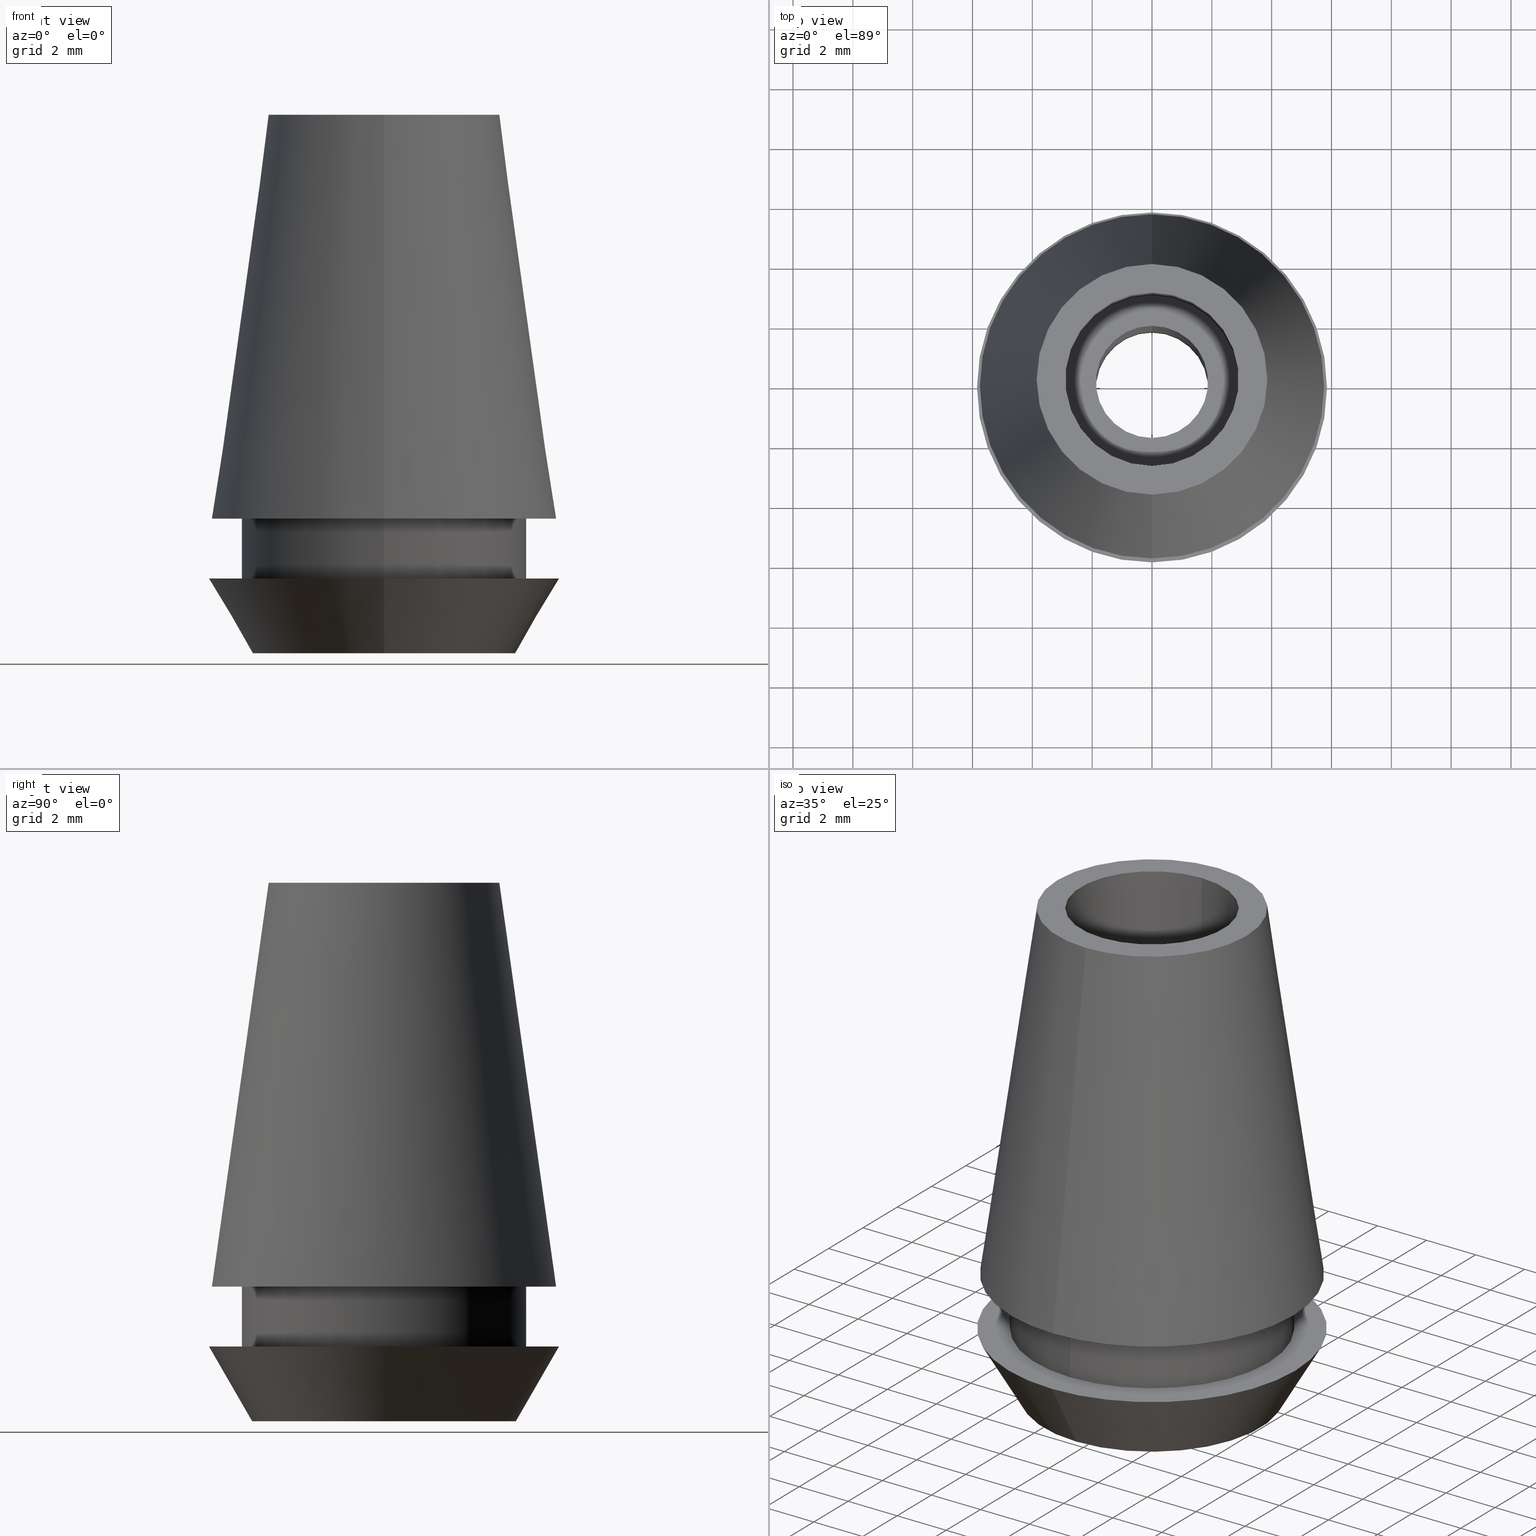
[diagram: canonical four-view strip — front | top / right | iso, engineering-drawing reading convention]
A machine part, canonical four-view strip (front | top / right | iso — engineering-drawing reading convention). The complete STEP part file that produces these views, byte-faithful:
ISO-10303-21;
HEADER;
FILE_DESCRIPTION((''),'2;1');
FILE_NAME('ERC11-3_75','2018-05-14T',('ykawabe'),(''),
'CREO PARAMETRIC BY PTC INC, 2016380','CREO PARAMETRIC BY PTC INC, 2016380','');
FILE_SCHEMA(('AUTOMOTIVE_DESIGN { 1 0 10303 214 1 1 1 1 }'));
ENDSEC;
DATA;
#17=DIRECTION('',(0.E0,0.E0,1.E0));
#18=VECTOR('',#17,4.85E0);
#19=CARTESIAN_POINT('',(0.E0,2.9E0,-4.85E0));
#20=LINE('',#19,#18);
#21=DRAUGHTING_PRE_DEFINED_CURVE_FONT('continuous');
#22=CURVE_STYLE('',#21,POSITIVE_LENGTH_MEASURE(2.E-2),#4);
#23=PRESENTATION_STYLE_ASSIGNMENT((#22));
#24=STYLED_ITEM('',(#23),#20);
#25=DIRECTION('',(0.E0,0.E0,1.E0));
#26=VECTOR('',#25,4.85E0);
#27=CARTESIAN_POINT('',(0.E0,-2.9E0,-4.85E0));
#28=LINE('',#27,#26);
#29=CURVE_STYLE('',#21,POSITIVE_LENGTH_MEASURE(2.E-2),#4);
#30=PRESENTATION_STYLE_ASSIGNMENT((#29));
#31=STYLED_ITEM('',(#30),#28);
#32=CARTESIAN_POINT('',(0.E0,1.378952295840E-14,-4.85E0));
#33=DIRECTION('',(0.E0,0.E0,-1.E0));
#34=DIRECTION('',(0.E0,-1.E0,0.E0));
#35=AXIS2_PLACEMENT_3D('',#32,#33,#34);
#37=CURVE_STYLE('',#21,POSITIVE_LENGTH_MEASURE(2.E-2),#4);
#38=PRESENTATION_STYLE_ASSIGNMENT((#37));
#39=STYLED_ITEM('',(#38),#36);
#40=CARTESIAN_POINT('',(0.E0,1.378952295840E-14,-4.85E0));
#41=DIRECTION('',(0.E0,0.E0,-1.E0));
#42=DIRECTION('',(0.E0,1.E0,0.E0));
#43=AXIS2_PLACEMENT_3D('',#40,#41,#42);
#45=CURVE_STYLE('',#21,POSITIVE_LENGTH_MEASURE(2.E-2),#4);
#46=PRESENTATION_STYLE_ASSIGNMENT((#45));
#47=STYLED_ITEM('',(#46),#44);
#48=CARTESIAN_POINT('',(0.E0,1.378952295840E-14,-4.85E0));
#49=DIRECTION('',(0.E0,0.E0,1.E0));
#50=DIRECTION('',(0.E0,-1.E0,0.E0));
#51=AXIS2_PLACEMENT_3D('',#48,#49,#50);
#53=CURVE_STYLE('',#21,POSITIVE_LENGTH_MEASURE(2.E-2),#4);
#54=PRESENTATION_STYLE_ASSIGNMENT((#53));
#55=STYLED_ITEM('',(#54),#52);
#56=CARTESIAN_POINT('',(0.E0,1.378952295840E-14,-4.85E0));
#57=DIRECTION('',(0.E0,0.E0,1.E0));
#58=DIRECTION('',(0.E0,1.E0,0.E0));
#59=AXIS2_PLACEMENT_3D('',#56,#57,#58);
#61=CURVE_STYLE('',#21,POSITIVE_LENGTH_MEASURE(2.E-2),#4);
#62=PRESENTATION_STYLE_ASSIGNMENT((#61));
#63=STYLED_ITEM('',(#62),#60);
#64=DIRECTION('',(0.E0,0.E0,1.E0));
#65=VECTOR('',#64,1.315E1);
#66=CARTESIAN_POINT('',(0.E0,1.875E0,-1.8E1));
#67=LINE('',#66,#65);
#68=CURVE_STYLE('',#21,POSITIVE_LENGTH_MEASURE(2.E-2),#4);
#69=PRESENTATION_STYLE_ASSIGNMENT((#68));
#70=STYLED_ITEM('',(#69),#67);
#71=DIRECTION('',(0.E0,0.E0,1.E0));
#72=VECTOR('',#71,1.315E1);
#73=CARTESIAN_POINT('',(0.E0,-1.875E0,-1.8E1));
#74=LINE('',#73,#72);
#75=CURVE_STYLE('',#21,POSITIVE_LENGTH_MEASURE(2.E-2),#4);
#76=PRESENTATION_STYLE_ASSIGNMENT((#75));
#77=STYLED_ITEM('',(#76),#74);
#78=CARTESIAN_POINT('',(0.E0,1.162802135790E-14,-1.8E1));
#79=DIRECTION('',(0.E0,0.E0,1.E0));
#80=DIRECTION('',(0.E0,-1.E0,0.E0));
#81=AXIS2_PLACEMENT_3D('',#78,#79,#80);
#83=CURVE_STYLE('',#21,POSITIVE_LENGTH_MEASURE(2.E-2),#4);
#84=PRESENTATION_STYLE_ASSIGNMENT((#83));
#85=STYLED_ITEM('',(#84),#82);
#86=CARTESIAN_POINT('',(0.E0,1.162802135790E-14,-1.8E1));
#87=DIRECTION('',(0.E0,0.E0,1.E0));
#88=DIRECTION('',(0.E0,1.E0,0.E0));
#89=AXIS2_PLACEMENT_3D('',#86,#87,#88);
#91=CURVE_STYLE('',#21,POSITIVE_LENGTH_MEASURE(2.E-2),#4);
#92=PRESENTATION_STYLE_ASSIGNMENT((#91));
#93=STYLED_ITEM('',(#92),#90);
#94=CARTESIAN_POINT('',(0.E0,1.378952295840E-14,-1.8E1));
#95=DIRECTION('',(0.E0,0.E0,-1.E0));
#96=DIRECTION('',(0.E0,-1.E0,0.E0));
#97=AXIS2_PLACEMENT_3D('',#94,#95,#96);
#99=CURVE_STYLE('',#21,POSITIVE_LENGTH_MEASURE(2.E-2),#4);
#100=PRESENTATION_STYLE_ASSIGNMENT((#99));
#101=STYLED_ITEM('',(#100),#98);
#102=CARTESIAN_POINT('',(0.E0,1.378952295840E-14,-1.8E1));
#103=DIRECTION('',(0.E0,0.E0,-1.E0));
#104=DIRECTION('',(0.E0,1.E0,0.E0));
#105=AXIS2_PLACEMENT_3D('',#102,#103,#104);
#107=CURVE_STYLE('',#21,POSITIVE_LENGTH_MEASURE(2.E-2),#4);
#108=PRESENTATION_STYLE_ASSIGNMENT((#107));
#109=STYLED_ITEM('',(#108),#106);
#110=DIRECTION('',(0.E0,-5.E-1,-8.660254037844E-1));
#111=VECTOR('',#110,2.886751345948E0);
#112=CARTESIAN_POINT('',(0.E0,5.85E0,-1.55E1));
#113=LINE('',#112,#111);
#114=CURVE_STYLE('',#21,POSITIVE_LENGTH_MEASURE(2.E-2),#4);
#115=PRESENTATION_STYLE_ASSIGNMENT((#114));
#116=STYLED_ITEM('',(#115),#113);
#117=DIRECTION('',(0.E0,5.E-1,-8.660254037844E-1));
#118=VECTOR('',#117,2.886751345948E0);
#119=CARTESIAN_POINT('',(0.E0,-5.85E0,-1.55E1));
#120=LINE('',#119,#118);
#121=CURVE_STYLE('',#21,POSITIVE_LENGTH_MEASURE(2.E-2),#4);
#122=PRESENTATION_STYLE_ASSIGNMENT((#121));
#123=STYLED_ITEM('',(#122),#120);
#124=CARTESIAN_POINT('',(0.E0,1.162802135790E-14,-1.55E1));
#125=DIRECTION('',(0.E0,0.E0,-1.E0));
#126=DIRECTION('',(0.E0,-1.E0,0.E0));
#127=AXIS2_PLACEMENT_3D('',#124,#125,#126);
#129=CURVE_STYLE('',#21,POSITIVE_LENGTH_MEASURE(2.E-2),#4);
#130=PRESENTATION_STYLE_ASSIGNMENT((#129));
#131=STYLED_ITEM('',(#130),#128);
#132=CARTESIAN_POINT('',(0.E0,1.162802135790E-14,-1.55E1));
#133=DIRECTION('',(0.E0,0.E0,-1.E0));
#134=DIRECTION('',(0.E0,1.E0,0.E0));
#135=AXIS2_PLACEMENT_3D('',#132,#133,#134);
#137=CURVE_STYLE('',#21,POSITIVE_LENGTH_MEASURE(2.E-2),#4);
#138=PRESENTATION_STYLE_ASSIGNMENT((#137));
#139=STYLED_ITEM('',(#138),#136);
#140=CARTESIAN_POINT('',(0.E0,1.378952295840E-14,-1.55E1));
#141=DIRECTION('',(0.E0,0.E0,1.E0));
#142=DIRECTION('',(0.E0,-1.E0,0.E0));
#143=AXIS2_PLACEMENT_3D('',#140,#141,#142);
#145=CURVE_STYLE('',#21,POSITIVE_LENGTH_MEASURE(2.E-2),#4);
#146=PRESENTATION_STYLE_ASSIGNMENT((#145));
#147=STYLED_ITEM('',(#146),#144);
#148=CARTESIAN_POINT('',(0.E0,1.378952295840E-14,-1.55E1));
#149=DIRECTION('',(0.E0,0.E0,1.E0));
#150=DIRECTION('',(0.E0,1.E0,0.E0));
#151=AXIS2_PLACEMENT_3D('',#148,#149,#150);
#153=CURVE_STYLE('',#21,POSITIVE_LENGTH_MEASURE(2.E-2),#4);
#154=PRESENTATION_STYLE_ASSIGNMENT((#153));
#155=STYLED_ITEM('',(#154),#152);
#156=DIRECTION('',(0.E0,0.E0,-1.E0));
#157=VECTOR('',#156,2.E0);
#158=CARTESIAN_POINT('',(0.E0,4.75E0,-1.35E1));
#159=LINE('',#158,#157);
#160=CURVE_STYLE('',#21,POSITIVE_LENGTH_MEASURE(2.E-2),#4);
#161=PRESENTATION_STYLE_ASSIGNMENT((#160));
#162=STYLED_ITEM('',(#161),#159);
#163=DIRECTION('',(0.E0,0.E0,-1.E0));
#164=VECTOR('',#163,2.E0);
#165=CARTESIAN_POINT('',(0.E0,-4.75E0,-1.35E1));
#166=LINE('',#165,#164);
#167=CURVE_STYLE('',#21,POSITIVE_LENGTH_MEASURE(2.E-2),#4);
#168=PRESENTATION_STYLE_ASSIGNMENT((#167));
#169=STYLED_ITEM('',(#168),#166);
#170=CARTESIAN_POINT('',(0.E0,1.285266815705E-14,-1.35E1));
#171=DIRECTION('',(0.E0,0.E0,1.E0));
#172=DIRECTION('',(0.E0,-1.E0,0.E0));
#173=AXIS2_PLACEMENT_3D('',#170,#171,#172);
#175=CURVE_STYLE('',#21,POSITIVE_LENGTH_MEASURE(2.E-2),#4);
#176=PRESENTATION_STYLE_ASSIGNMENT((#175));
#177=STYLED_ITEM('',(#176),#174);
#178=CARTESIAN_POINT('',(0.E0,1.285266815705E-14,-1.35E1));
#179=DIRECTION('',(0.E0,0.E0,1.E0));
#180=DIRECTION('',(0.E0,1.E0,0.E0));
#181=AXIS2_PLACEMENT_3D('',#178,#179,#180);
#183=CURVE_STYLE('',#21,POSITIVE_LENGTH_MEASURE(2.E-2),#4);
#184=PRESENTATION_STYLE_ASSIGNMENT((#183));
#185=STYLED_ITEM('',(#184),#182);
#186=CARTESIAN_POINT('',(0.E0,1.378952295840E-14,-1.35E1));
#187=DIRECTION('',(0.E0,0.E0,-1.E0));
#188=DIRECTION('',(0.E0,-1.E0,0.E0));
#189=AXIS2_PLACEMENT_3D('',#186,#187,#188);
#191=CURVE_STYLE('',#21,POSITIVE_LENGTH_MEASURE(2.E-2),#4);
#192=PRESENTATION_STYLE_ASSIGNMENT((#191));
#193=STYLED_ITEM('',(#192),#190);
#194=CARTESIAN_POINT('',(0.E0,1.378952295840E-14,-1.35E1));
#195=DIRECTION('',(0.E0,0.E0,-1.E0));
#196=DIRECTION('',(0.E0,1.E0,0.E0));
#197=AXIS2_PLACEMENT_3D('',#194,#195,#196);
#199=CURVE_STYLE('',#21,POSITIVE_LENGTH_MEASURE(2.E-2),#4);
#200=PRESENTATION_STYLE_ASSIGNMENT((#199));
#201=STYLED_ITEM('',(#200),#198);
#202=DIRECTION('',(0.E0,1.391731009601E-1,-9.902680687416E-1));
#203=VECTOR('',#202,1.363267222900E1);
#204=CARTESIAN_POINT('',(0.E0,3.855672233982E0,0.E0));
#205=LINE('',#204,#203);
#206=CURVE_STYLE('',#21,POSITIVE_LENGTH_MEASURE(2.E-2),#4);
#207=PRESENTATION_STYLE_ASSIGNMENT((#206));
#208=STYLED_ITEM('',(#207),#205);
#209=DIRECTION('',(0.E0,-1.391731009601E-1,-9.902680687416E-1));
#210=VECTOR('',#209,1.363267222900E1);
#211=CARTESIAN_POINT('',(0.E0,-3.855672233982E0,0.E0));
#212=LINE('',#211,#210);
#213=CURVE_STYLE('',#21,POSITIVE_LENGTH_MEASURE(2.E-2),#4);
#214=PRESENTATION_STYLE_ASSIGNMENT((#213));
#215=STYLED_ITEM('',(#214),#212);
#216=CARTESIAN_POINT('',(0.E0,1.285266815705E-14,2.486899575160E-14));
#217=DIRECTION('',(0.E0,0.E0,-1.E0));
#218=DIRECTION('',(0.E0,-1.E0,0.E0));
#219=AXIS2_PLACEMENT_3D('',#216,#217,#218);
#221=CURVE_STYLE('',#21,POSITIVE_LENGTH_MEASURE(2.E-2),#4);
#222=PRESENTATION_STYLE_ASSIGNMENT((#221));
#223=STYLED_ITEM('',(#222),#220);
#224=CARTESIAN_POINT('',(0.E0,1.285266815705E-14,2.486899575160E-14));
#225=DIRECTION('',(0.E0,0.E0,-1.E0));
#226=DIRECTION('',(0.E0,1.E0,0.E0));
#227=AXIS2_PLACEMENT_3D('',#224,#225,#226);
#229=CURVE_STYLE('',#21,POSITIVE_LENGTH_MEASURE(2.E-2),#4);
#230=PRESENTATION_STYLE_ASSIGNMENT((#229));
#231=STYLED_ITEM('',(#230),#228);
#232=CARTESIAN_POINT('',(0.E0,1.378952295840E-14,0.E0));
#233=DIRECTION('',(0.E0,0.E0,1.E0));
#234=DIRECTION('',(0.E0,-1.E0,0.E0));
#235=AXIS2_PLACEMENT_3D('',#232,#233,#234);
#237=CURVE_STYLE('',#21,POSITIVE_LENGTH_MEASURE(2.E-2),#4);
#238=PRESENTATION_STYLE_ASSIGNMENT((#237));
#239=STYLED_ITEM('',(#238),#236);
#240=CARTESIAN_POINT('',(0.E0,1.378952295840E-14,0.E0));
#241=DIRECTION('',(0.E0,0.E0,1.E0));
#242=DIRECTION('',(0.E0,1.E0,0.E0));
#243=AXIS2_PLACEMENT_3D('',#240,#241,#242);
#245=CURVE_STYLE('',#21,POSITIVE_LENGTH_MEASURE(2.E-2),#4);
#246=PRESENTATION_STYLE_ASSIGNMENT((#245));
#247=STYLED_ITEM('',(#246),#244);
#248=CARTESIAN_POINT('',(0.E0,2.9E0,-4.85E0));
#249=CARTESIAN_POINT('',(0.E0,2.9E0,0.E0));
#250=VERTEX_POINT('',#248);
#251=VERTEX_POINT('',#249);
#252=CARTESIAN_POINT('',(0.E0,-2.9E0,0.E0));
#253=VERTEX_POINT('',#252);
#254=CARTESIAN_POINT('',(0.E0,-2.9E0,-4.85E0));
#255=VERTEX_POINT('',#254);
#256=CARTESIAN_POINT('',(0.E0,-1.875E0,-4.85E0));
#257=CARTESIAN_POINT('',(0.E0,1.875E0,-4.85E0));
#258=VERTEX_POINT('',#256);
#259=VERTEX_POINT('',#257);
#260=CARTESIAN_POINT('',(0.E0,1.875E0,-1.8E1));
#261=VERTEX_POINT('',#260);
#262=CARTESIAN_POINT('',(0.E0,-1.875E0,-1.8E1));
#263=VERTEX_POINT('',#262);
#264=CARTESIAN_POINT('',(0.E0,-4.406624327026E0,-1.8E1));
#265=CARTESIAN_POINT('',(0.E0,4.406624327026E0,-1.8E1));
#266=VERTEX_POINT('',#264);
#267=VERTEX_POINT('',#265);
#268=CARTESIAN_POINT('',(0.E0,5.85E0,-1.55E1));
#269=VERTEX_POINT('',#268);
#270=CARTESIAN_POINT('',(0.E0,-5.85E0,-1.55E1));
#271=VERTEX_POINT('',#270);
#272=CARTESIAN_POINT('',(0.E0,-4.75E0,-1.55E1));
#273=CARTESIAN_POINT('',(0.E0,4.75E0,-1.55E1));
#274=VERTEX_POINT('',#272);
#275=VERTEX_POINT('',#273);
#276=CARTESIAN_POINT('',(0.E0,4.75E0,-1.35E1));
#277=VERTEX_POINT('',#276);
#278=CARTESIAN_POINT('',(0.E0,-4.75E0,-1.35E1));
#279=VERTEX_POINT('',#278);
#280=CARTESIAN_POINT('',(0.E0,-5.752973502464E0,-1.35E1));
#281=CARTESIAN_POINT('',(0.E0,5.752973502464E0,-1.35E1));
#282=VERTEX_POINT('',#280);
#283=VERTEX_POINT('',#281);
#284=CARTESIAN_POINT('',(0.E0,3.855672233982E0,0.E0));
#285=VERTEX_POINT('',#284);
#286=CARTESIAN_POINT('',(0.E0,-3.855672233982E0,0.E0));
#287=VERTEX_POINT('',#286);
#288=CARTESIAN_POINT('',(0.E0,1.378952295840E-14,9.E-1));
#289=DIRECTION('',(0.E0,0.E0,-1.E0));
#290=DIRECTION('',(0.E0,-1.E0,0.E0));
#291=AXIS2_PLACEMENT_3D('',#288,#289,#290);
#292=CYLINDRICAL_SURFACE('',#291,2.9E0);
#294=ORIENTED_EDGE('',*,*,#293,.T.);
#296=ORIENTED_EDGE('',*,*,#295,.F.);
#298=ORIENTED_EDGE('',*,*,#297,.F.);
#300=ORIENTED_EDGE('',*,*,#299,.F.);
#301=EDGE_LOOP('',(#294,#296,#298,#300));
#302=FACE_OUTER_BOUND('',#301,.F.);
#304=CARTESIAN_POINT('',(0.E0,1.378952295840E-14,9.E-1));
#305=DIRECTION('',(0.E0,0.E0,-1.E0));
#306=DIRECTION('',(0.E0,-1.E0,0.E0));
#307=AXIS2_PLACEMENT_3D('',#304,#305,#306);
#308=CYLINDRICAL_SURFACE('',#307,2.9E0);
#309=ORIENTED_EDGE('',*,*,#293,.F.);
#311=ORIENTED_EDGE('',*,*,#310,.F.);
#312=ORIENTED_EDGE('',*,*,#297,.T.);
#314=ORIENTED_EDGE('',*,*,#313,.F.);
#315=EDGE_LOOP('',(#309,#311,#312,#314));
#316=FACE_OUTER_BOUND('',#315,.F.);
#318=CARTESIAN_POINT('',(0.E0,1.308535104889E-14,-4.85E0));
#319=DIRECTION('',(0.E0,0.E0,-1.E0));
#320=DIRECTION('',(0.E0,-1.E0,0.E0));
#321=AXIS2_PLACEMENT_3D('',#318,#319,#320);
#322=PLANE('',#321);
#323=ORIENTED_EDGE('',*,*,#310,.T.);
#324=ORIENTED_EDGE('',*,*,#299,.T.);
#325=EDGE_LOOP('',(#323,#324));
#326=FACE_OUTER_BOUND('',#325,.F.);
#328=ORIENTED_EDGE('',*,*,#327,.T.);
#330=ORIENTED_EDGE('',*,*,#329,.T.);
#331=EDGE_LOOP('',(#328,#330));
#332=FACE_BOUND('',#331,.F.);
#334=CARTESIAN_POINT('',(0.E0,1.378952295840E-14,9.E-1));
#335=DIRECTION('',(0.E0,0.E0,-1.E0));
#336=DIRECTION('',(0.E0,-1.E0,0.E0));
#337=AXIS2_PLACEMENT_3D('',#334,#335,#336);
#338=CYLINDRICAL_SURFACE('',#337,1.875E0);
#340=ORIENTED_EDGE('',*,*,#339,.T.);
#341=ORIENTED_EDGE('',*,*,#327,.F.);
#343=ORIENTED_EDGE('',*,*,#342,.F.);
#345=ORIENTED_EDGE('',*,*,#344,.F.);
#346=EDGE_LOOP('',(#340,#341,#343,#345));
#347=FACE_OUTER_BOUND('',#346,.F.);
#349=CARTESIAN_POINT('',(0.E0,1.378952295840E-14,9.E-1));
#350=DIRECTION('',(0.E0,0.E0,-1.E0));
#351=DIRECTION('',(0.E0,-1.E0,0.E0));
#352=AXIS2_PLACEMENT_3D('',#349,#350,#351);
#353=CYLINDRICAL_SURFACE('',#352,1.875E0);
#354=ORIENTED_EDGE('',*,*,#339,.F.);
#356=ORIENTED_EDGE('',*,*,#355,.F.);
#357=ORIENTED_EDGE('',*,*,#342,.T.);
#358=ORIENTED_EDGE('',*,*,#329,.F.);
#359=EDGE_LOOP('',(#354,#356,#357,#358));
#360=FACE_OUTER_BOUND('',#359,.F.);
#362=CARTESIAN_POINT('',(0.E0,1.147494050801E-14,-1.8E1));
#363=DIRECTION('',(0.E0,0.E0,-1.E0));
#364=DIRECTION('',(0.E0,-1.E0,0.E0));
#365=AXIS2_PLACEMENT_3D('',#362,#363,#364);
#366=PLANE('',#365);
#368=ORIENTED_EDGE('',*,*,#367,.T.);
#370=ORIENTED_EDGE('',*,*,#369,.T.);
#371=EDGE_LOOP('',(#368,#370));
#372=FACE_OUTER_BOUND('',#371,.F.);
#373=ORIENTED_EDGE('',*,*,#355,.T.);
#374=ORIENTED_EDGE('',*,*,#344,.T.);
#375=EDGE_LOOP('',(#373,#374));
#376=FACE_BOUND('',#375,.F.);
#378=CARTESIAN_POINT('',(0.E0,1.162802135790E-14,-1.675E1));
#379=DIRECTION('',(0.E0,0.E0,1.E0));
#380=DIRECTION('',(0.E0,1.E0,0.E0));
#381=AXIS2_PLACEMENT_3D('',#378,#379,#380);
#382=CONICAL_SURFACE('',#381,5.128312163513E0,3.E1);
#384=ORIENTED_EDGE('',*,*,#383,.T.);
#385=ORIENTED_EDGE('',*,*,#367,.F.);
#387=ORIENTED_EDGE('',*,*,#386,.F.);
#389=ORIENTED_EDGE('',*,*,#388,.F.);
#390=EDGE_LOOP('',(#384,#385,#387,#389));
#391=FACE_OUTER_BOUND('',#390,.F.);
#393=CARTESIAN_POINT('',(0.E0,1.162802135790E-14,-1.675E1));
#394=DIRECTION('',(0.E0,0.E0,1.E0));
#395=DIRECTION('',(0.E0,1.E0,0.E0));
#396=AXIS2_PLACEMENT_3D('',#393,#394,#395);
#397=CONICAL_SURFACE('',#396,5.128312163513E0,3.E1);
#398=ORIENTED_EDGE('',*,*,#383,.F.);
#400=ORIENTED_EDGE('',*,*,#399,.F.);
#401=ORIENTED_EDGE('',*,*,#386,.T.);
#402=ORIENTED_EDGE('',*,*,#369,.F.);
#403=EDGE_LOOP('',(#398,#400,#401,#402));
#404=FACE_OUTER_BOUND('',#403,.F.);
#406=CARTESIAN_POINT('',(0.E0,1.178110220780E-14,-1.55E1));
#407=DIRECTION('',(0.E0,0.E0,-1.E0));
#408=DIRECTION('',(0.E0,-1.E0,0.E0));
#409=AXIS2_PLACEMENT_3D('',#406,#407,#408);
#410=PLANE('',#409);
#411=ORIENTED_EDGE('',*,*,#399,.T.);
#412=ORIENTED_EDGE('',*,*,#388,.T.);
#413=EDGE_LOOP('',(#411,#412));
#414=FACE_OUTER_BOUND('',#413,.F.);
#416=ORIENTED_EDGE('',*,*,#415,.T.);
#418=ORIENTED_EDGE('',*,*,#417,.T.);
#419=EDGE_LOOP('',(#416,#418));
#420=FACE_BOUND('',#419,.F.);
#422=CARTESIAN_POINT('',(0.E0,1.378952295840E-14,9.E-1));
#423=DIRECTION('',(0.E0,0.E0,-1.E0));
#424=DIRECTION('',(0.E0,-1.E0,0.E0));
#425=AXIS2_PLACEMENT_3D('',#422,#423,#424);
#426=CYLINDRICAL_SURFACE('',#425,4.75E0);
#428=ORIENTED_EDGE('',*,*,#427,.T.);
#429=ORIENTED_EDGE('',*,*,#415,.F.);
#431=ORIENTED_EDGE('',*,*,#430,.F.);
#433=ORIENTED_EDGE('',*,*,#432,.F.);
#434=EDGE_LOOP('',(#428,#429,#431,#433));
#435=FACE_OUTER_BOUND('',#434,.F.);
#437=CARTESIAN_POINT('',(0.E0,1.378952295840E-14,9.E-1));
#438=DIRECTION('',(0.E0,0.E0,-1.E0));
#439=DIRECTION('',(0.E0,-1.E0,0.E0));
#440=AXIS2_PLACEMENT_3D('',#437,#438,#439);
#441=CYLINDRICAL_SURFACE('',#440,4.75E0);
#442=ORIENTED_EDGE('',*,*,#427,.F.);
#444=ORIENTED_EDGE('',*,*,#443,.F.);
#445=ORIENTED_EDGE('',*,*,#430,.T.);
#446=ORIENTED_EDGE('',*,*,#417,.F.);
#447=EDGE_LOOP('',(#442,#444,#445,#446));
#448=FACE_OUTER_BOUND('',#447,.F.);
#450=CARTESIAN_POINT('',(0.E0,1.202603156763E-14,-1.35E1));
#451=DIRECTION('',(0.E0,0.E0,-1.E0));
#452=DIRECTION('',(0.E0,-1.E0,0.E0));
#453=AXIS2_PLACEMENT_3D('',#450,#451,#452);
#454=PLANE('',#453);
#456=ORIENTED_EDGE('',*,*,#455,.T.);
#458=ORIENTED_EDGE('',*,*,#457,.T.);
#459=EDGE_LOOP('',(#456,#458));
#460=FACE_OUTER_BOUND('',#459,.F.);
#461=ORIENTED_EDGE('',*,*,#443,.T.);
#462=ORIENTED_EDGE('',*,*,#432,.T.);
#463=EDGE_LOOP('',(#461,#462));
#464=FACE_BOUND('',#463,.F.);
#466=CARTESIAN_POINT('',(0.E0,1.285266815705E-14,-6.75E0));
#467=DIRECTION('',(0.E0,0.E0,-1.E0));
#468=DIRECTION('',(0.E0,-1.E0,0.E0));
#469=AXIS2_PLACEMENT_3D('',#466,#467,#468);
#470=CONICAL_SURFACE('',#469,4.804322868223E0,8.E0);
#472=ORIENTED_EDGE('',*,*,#471,.T.);
#473=ORIENTED_EDGE('',*,*,#455,.F.);
#475=ORIENTED_EDGE('',*,*,#474,.F.);
#477=ORIENTED_EDGE('',*,*,#476,.F.);
#478=EDGE_LOOP('',(#472,#473,#475,#477));
#479=FACE_OUTER_BOUND('',#478,.F.);
#481=CARTESIAN_POINT('',(0.E0,1.285266815705E-14,-6.75E0));
#482=DIRECTION('',(0.E0,0.E0,-1.E0));
#483=DIRECTION('',(0.E0,-1.E0,0.E0));
#484=AXIS2_PLACEMENT_3D('',#481,#482,#483);
#485=CONICAL_SURFACE('',#484,4.804322868223E0,8.E0);
#486=ORIENTED_EDGE('',*,*,#471,.F.);
#488=ORIENTED_EDGE('',*,*,#487,.F.);
#489=ORIENTED_EDGE('',*,*,#474,.T.);
#490=ORIENTED_EDGE('',*,*,#457,.F.);
#491=EDGE_LOOP('',(#486,#488,#489,#490));
#492=FACE_OUTER_BOUND('',#491,.F.);
#494=CARTESIAN_POINT('',(0.E0,1.367930474648E-14,0.E0));
#495=DIRECTION('',(0.E0,0.E0,-1.E0));
#496=DIRECTION('',(0.E0,-1.E0,0.E0));
#497=AXIS2_PLACEMENT_3D('',#494,#495,#496);
#498=PLANE('',#497);
#499=ORIENTED_EDGE('',*,*,#487,.T.);
#500=ORIENTED_EDGE('',*,*,#476,.T.);
#501=EDGE_LOOP('',(#499,#500));
#502=FACE_OUTER_BOUND('',#501,.F.);
#503=ORIENTED_EDGE('',*,*,#295,.T.);
#504=ORIENTED_EDGE('',*,*,#313,.T.);
#505=EDGE_LOOP('',(#503,#504));
#506=FACE_BOUND('',#505,.F.);
#508=CLOSED_SHELL('',(#303,#317,#333,#348,#361,#377,#392,#405,#421,#436,#449,
#465,#480,#493,#507));
#509=MANIFOLD_SOLID_BREP('',#508);
#510=FILL_AREA_STYLE_COLOUR('',#4);
#511=FILL_AREA_STYLE('',(#510));
#512=SURFACE_STYLE_FILL_AREA(#511);
#513=SURFACE_SIDE_STYLE('',(#512));
#514=SURFACE_STYLE_USAGE(.BOTH.,#513);
#515=PRESENTATION_STYLE_ASSIGNMENT((#514));
#16=STYLED_ITEM('',(#515),#509);
#516=CARTESIAN_POINT('',(0.E0,0.E0,0.E0));
#517=DIRECTION('',(0.E0,0.E0,1.E0));
#518=DIRECTION('',(1.E0,0.E0,0.E0));
#519=AXIS2_PLACEMENT_3D('ERC11-3_75',#516,#517,#518);
#520=CURVE_STYLE('',#21,POSITIVE_LENGTH_MEASURE(2.E-2),#6);
#521=PRESENTATION_STYLE_ASSIGNMENT((#520));
#522=STYLED_ITEM('',(#521),#519);
#523=CARTESIAN_POINT('',(0.E0,0.E0,-1.8E1));
#524=DIRECTION('',(0.E0,0.E0,1.E0));
#525=DIRECTION('',(1.E0,0.E0,0.E0));
#526=AXIS2_PLACEMENT_3D('CSW',#523,#524,#525);
#527=CURVE_STYLE('',#21,POSITIVE_LENGTH_MEASURE(2.E-2),#4);
#528=PRESENTATION_STYLE_ASSIGNMENT((#527));
#529=STYLED_ITEM('',(#528),#526);
#530=CARTESIAN_POINT('',(0.E0,0.E0,-1.17E1));
#531=DIRECTION('',(0.E0,0.E0,1.E0));
#532=DIRECTION('',(1.E0,0.E0,0.E0));
#533=AXIS2_PLACEMENT_3D('MCS',#530,#531,#532);
#534=CURVE_STYLE('',#21,POSITIVE_LENGTH_MEASURE(2.E-2),#4);
#535=PRESENTATION_STYLE_ASSIGNMENT((#534));
#536=STYLED_ITEM('',(#535),#533);
#537=CARTESIAN_POINT('',(0.E0,0.E0,0.E0));
#538=DIRECTION('',(0.E0,0.E0,1.E0));
#539=DIRECTION('',(1.E0,0.E0,0.E0));
#540=AXIS2_PLACEMENT_3D('PCS',#537,#538,#539);
#541=CURVE_STYLE('',#21,POSITIVE_LENGTH_MEASURE(2.E-2),#4);
#542=PRESENTATION_STYLE_ASSIGNMENT((#541));
#543=STYLED_ITEM('',(#542),#540);
#546=PLANE_ANGLE_MEASURE_WITH_UNIT(PLANE_ANGLE_MEASURE(1.745329251994E-2),#545);
#547=(CONVERSION_BASED_UNIT('DEGREE',#546)NAMED_UNIT(*)PLANE_ANGLE_UNIT());
#549=UNCERTAINTY_MEASURE_WITH_UNIT(LENGTH_MEASURE(2.445310380847E-3),#544,
'distance_accuracy_value',
'Maximum model space distance between geometric entities at asserted connectivities');
#553=CARTESIAN_POINT('',(0.E0,0.E0,0.E0));
#554=DIRECTION('',(0.E0,0.E0,1.E0));
#555=DIRECTION('',(1.E0,0.E0,0.E0));
#558=SHAPE_REPRESENTATION_RELATIONSHIP('','',#557,#551);
#559=CONSTRUCTIVE_GEOMETRY_REPRESENTATION_RELATIONSHIP('','',#557,#552);
#560=MECHANICAL_DESIGN_GEOMETRIC_PRESENTATION_REPRESENTATION('',(#24,#31,#39,
#47,#55,#63,#70,#77,#85,#93,#101,#109,#116,#123,#131,#139,#147,#155,#162,#169,
#177,#185,#193,#201,#208,#215,#223,#231,#239,#247,#16,#522,#529,#536,#543),
#550);
#561=APPLICATION_CONTEXT('automotive_design');
#562=APPLICATION_PROTOCOL_DEFINITION('international standard',
'automotive_design',2001,#561);
#563=PRODUCT_DEFINITION_CONTEXT('part definition',#561,'design');
#564=PRODUCT_CONTEXT('',#561,'mechanical');
#565=PRODUCT('ERC11-3_75','ERC11-3_75','NOT SPECIFIED',(#564));
#566=PRODUCT_DEFINITION_FORMATION('1','LAST_VERSION',#565);
#574=DERIVED_UNIT_ELEMENT(#573,2.E0);
#575=DERIVED_UNIT((#574));
#576=MEASURE_REPRESENTATION_ITEM('surface area measure',AREA_MEASURE(
9.628662373767E2),#575);
#581=DERIVED_UNIT_ELEMENT(#580,3.E0);
#582=DERIVED_UNIT((#581));
#583=MEASURE_REPRESENTATION_ITEM('volume measure',VOLUME_MEASURE(
1.067950619750E3),#582);
#587=CARTESIAN_POINT('centre point',(2.655119424083E-11,1.249661666123E-14,
-1.040064251512E1));
#592=DERIVED_UNIT_ELEMENT(#591,2.E0);
#593=DERIVED_UNIT((#592));
#594=MEASURE_REPRESENTATION_ITEM('surface area measure',AREA_MEASURE(
9.628662373767E2),#593);
#599=DERIVED_UNIT_ELEMENT(#598,3.E0);
#600=DERIVED_UNIT((#599));
#601=MEASURE_REPRESENTATION_ITEM('volume measure',VOLUME_MEASURE(
1.067950619750E3),#600);
#605=CARTESIAN_POINT('centre point',(2.655119424083E-11,1.249661666123E-14,
-1.040064251512E1));
#610=PRODUCT_RELATED_PRODUCT_CATEGORY('part','',(#565));
#612=GENERAL_PROPERTY('','DESCRIPTION','user defined attribute');
#613=GENERAL_PROPERTY_ASSOCIATION('user defined attribute','',#612,#611);
#614=DESCRIPTIVE_REPRESENTATION_ITEM('DESCRIPTION','');
#618=GENERAL_PROPERTY('','MODELED_BY','user defined attribute');
#619=GENERAL_PROPERTY_ASSOCIATION('user defined attribute','',#618,#617);
#620=DESCRIPTIVE_REPRESENTATION_ITEM('MODELED_BY','');
#624=GENERAL_PROPERTY('','DXF_NAME','user defined attribute');
#625=GENERAL_PROPERTY_ASSOCIATION('user defined attribute','',#624,#623);
#626=DESCRIPTIVE_REPRESENTATION_ITEM('DXF_NAME','ERC20-3');
#630=GENERAL_PROPERTY('','CCWS','user defined attribute');
#631=GENERAL_PROPERTY_ASSOCIATION('user defined attribute','',#630,#629);
#632=DESCRIPTIVE_REPRESENTATION_ITEM('CCWS','');
#636=GENERAL_PROPERTY('','DIM_A','user defined attribute');
#637=GENERAL_PROPERTY_ASSOCIATION('user defined attribute','',#636,#635);
#638=VALUE_REPRESENTATION_ITEM('DIM_A',COUNT_MEASURE(18));
#641=DESCRIPTIVE_REPRESENTATION_ITEM('attribute description','Integer');
#646=GENERAL_PROPERTY('','DIM_B','user defined attribute');
#647=GENERAL_PROPERTY_ASSOCIATION('user defined attribute','',#646,#645);
#648=VALUE_REPRESENTATION_ITEM('DIM_B',COUNT_MEASURE(11));
#651=DESCRIPTIVE_REPRESENTATION_ITEM('attribute description','Integer');
#656=GENERAL_PROPERTY('','DIM_C','user defined attribute');
#657=GENERAL_PROPERTY_ASSOCIATION('user defined attribute','',#656,#655);
#658=VALUE_REPRESENTATION_ITEM('DIM_C',NUMERIC_MEASURE(6.3E0));
#661=DESCRIPTIVE_REPRESENTATION_ITEM('attribute description','Real Number');
#666=GENERAL_PROPERTY('','DIM_D','user defined attribute');
#667=GENERAL_PROPERTY_ASSOCIATION('user defined attribute','',#666,#665);
#668=VALUE_REPRESENTATION_ITEM('DIM_D',NUMERIC_MEASURE(3.8E0));
#671=DESCRIPTIVE_REPRESENTATION_ITEM('attribute description','Real Number');
#676=GENERAL_PROPERTY('','DIM_E','user defined attribute');
#677=GENERAL_PROPERTY_ASSOCIATION('user defined attribute','',#676,#675);
#678=VALUE_REPRESENTATION_ITEM('DIM_E',NUMERIC_MEASURE(1.8E0));
#681=DESCRIPTIVE_REPRESENTATION_ITEM('attribute description','Real Number');
#686=GENERAL_PROPERTY('','DIM_H','user defined attribute');
#687=GENERAL_PROPERTY_ASSOCIATION('user defined attribute','',#686,#685);
#688=VALUE_REPRESENTATION_ITEM('DIM_H',NUMERIC_MEASURE(9.5E0));
#691=DESCRIPTIVE_REPRESENTATION_ITEM('attribute description','Real Number');
#696=GENERAL_PROPERTY('','DIM_F','user defined attribute');
#697=GENERAL_PROPERTY_ASSOCIATION('user defined attribute','',#696,#695);
#698=VALUE_REPRESENTATION_ITEM('DIM_F',NUMERIC_MEASURE(1.17E1));
#701=DESCRIPTIVE_REPRESENTATION_ITEM('attribute description','Real Number');
#706=GENERAL_PROPERTY('','DIM_I','user defined attribute');
#707=GENERAL_PROPERTY_ASSOCIATION('user defined attribute','',#706,#705);
#708=VALUE_REPRESENTATION_ITEM('DIM_I',NUMERIC_MEASURE(3.75E0));
#711=DESCRIPTIVE_REPRESENTATION_ITEM('attribute description','Real Number');
#716=GENERAL_PROPERTY('','DIM_J','user defined attribute');
#717=GENERAL_PROPERTY_ASSOCIATION('user defined attribute','',#716,#715);
#718=VALUE_REPRESENTATION_ITEM('DIM_J',NUMERIC_MEASURE(5.8E0));
#721=DESCRIPTIVE_REPRESENTATION_ITEM('attribute description','Real Number');
#726=GENERAL_PROPERTY('','DIM_K','user defined attribute');
#727=GENERAL_PROPERTY_ASSOCIATION('user defined attribute','',#726,#725);
#728=VALUE_REPRESENTATION_ITEM('DIM_K',NUMERIC_MEASURE(4.85E0));
#731=DESCRIPTIVE_REPRESENTATION_ITEM('attribute description','Real Number');
#1=DRAUGHTING_PRE_DEFINED_COLOUR('green');
#2=COLOUR_RGB('',1.1E-2,1.2E-2,1.E0);
#3=COLOUR_RGB('',4.1E-1,2.61589E-1,1.12848E-1);
#4=COLOUR_RGB('',5.019607843137E-1,5.019607843137E-1,5.019607843137E-1);
#5=COLOUR_RGB('',5.04854E-1,1.5455E-2,1.5455E-2);
#6=COLOUR_RGB('',6.E-1,4.E-1,2.E-1);
#7=COLOUR_RGB('',6.40777E-1,6.40777E-1,6.40777E-1);
#8=COLOUR_RGB('',6.69062E-1,6.69903E-1,6.55217E-1);
#9=COLOUR_RGB('',6.952E-1,7.426E-1,7.9E-1);
#10=COLOUR_RGB('',9.21569E-1,7.05882E-1,4.70588E-1);
#11=DRAUGHTING_PRE_DEFINED_COLOUR('red');
#12=DRAUGHTING_PRE_DEFINED_COLOUR('yellow');
#13=COLOUR_RGB('',1.E0,1.E0,5.3E-1);
#14=COLOUR_RGB('',1.E0,1.E0,9.49E-1);
#15=DRAUGHTING_PRE_DEFINED_COLOUR('white');
#36=CIRCLE('',#35,2.9E0);
#44=CIRCLE('',#43,2.9E0);
#52=CIRCLE('',#51,1.875E0);
#60=CIRCLE('',#59,1.875E0);
#82=CIRCLE('',#81,4.406624327026E0);
#90=CIRCLE('',#89,4.406624327026E0);
#98=CIRCLE('',#97,1.875E0);
#106=CIRCLE('',#105,1.875E0);
#128=CIRCLE('',#127,5.85E0);
#136=CIRCLE('',#135,5.85E0);
#144=CIRCLE('',#143,4.75E0);
#152=CIRCLE('',#151,4.75E0);
#174=CIRCLE('',#173,5.752973502464E0);
#182=CIRCLE('',#181,5.752973502464E0);
#190=CIRCLE('',#189,4.75E0);
#198=CIRCLE('',#197,4.75E0);
#220=CIRCLE('',#219,3.855672233982E0);
#228=CIRCLE('',#227,3.855672233982E0);
#236=CIRCLE('',#235,2.9E0);
#244=CIRCLE('',#243,2.9E0);
#293=EDGE_CURVE('',#250,#251,#20,.T.);
#295=EDGE_CURVE('',#253,#251,#236,.T.);
#297=EDGE_CURVE('',#255,#253,#28,.T.);
#299=EDGE_CURVE('',#250,#255,#44,.T.);
#303=ADVANCED_FACE('',(#302),#292,.F.);
#310=EDGE_CURVE('',#255,#250,#36,.T.);
#313=EDGE_CURVE('',#251,#253,#244,.T.);
#317=ADVANCED_FACE('',(#316),#308,.F.);
#327=EDGE_CURVE('',#258,#259,#52,.T.);
#329=EDGE_CURVE('',#259,#258,#60,.T.);
#333=ADVANCED_FACE('',(#326,#332),#322,.F.);
#339=EDGE_CURVE('',#261,#259,#67,.T.);
#342=EDGE_CURVE('',#263,#258,#74,.T.);
#344=EDGE_CURVE('',#261,#263,#106,.T.);
#348=ADVANCED_FACE('',(#347),#338,.F.);
#355=EDGE_CURVE('',#263,#261,#98,.T.);
#361=ADVANCED_FACE('',(#360),#353,.F.);
#367=EDGE_CURVE('',#266,#267,#82,.T.);
#369=EDGE_CURVE('',#267,#266,#90,.T.);
#377=ADVANCED_FACE('',(#372,#376),#366,.T.);
#383=EDGE_CURVE('',#269,#267,#113,.T.);
#386=EDGE_CURVE('',#271,#266,#120,.T.);
#388=EDGE_CURVE('',#269,#271,#136,.T.);
#392=ADVANCED_FACE('',(#391),#382,.T.);
#399=EDGE_CURVE('',#271,#269,#128,.T.);
#405=ADVANCED_FACE('',(#404),#397,.T.);
#415=EDGE_CURVE('',#274,#275,#144,.T.);
#417=EDGE_CURVE('',#275,#274,#152,.T.);
#421=ADVANCED_FACE('',(#414,#420),#410,.F.);
#427=EDGE_CURVE('',#277,#275,#159,.T.);
#430=EDGE_CURVE('',#279,#274,#166,.T.);
#432=EDGE_CURVE('',#277,#279,#198,.T.);
#436=ADVANCED_FACE('',(#435),#426,.T.);
#443=EDGE_CURVE('',#279,#277,#190,.T.);
#449=ADVANCED_FACE('',(#448),#441,.T.);
#455=EDGE_CURVE('',#282,#283,#174,.T.);
#457=EDGE_CURVE('',#283,#282,#182,.T.);
#465=ADVANCED_FACE('',(#460,#464),#454,.T.);
#471=EDGE_CURVE('',#285,#283,#205,.T.);
#474=EDGE_CURVE('',#287,#282,#212,.T.);
#476=EDGE_CURVE('',#285,#287,#228,.T.);
#480=ADVANCED_FACE('',(#479),#470,.T.);
#487=EDGE_CURVE('',#287,#285,#220,.T.);
#493=ADVANCED_FACE('',(#492),#485,.T.);
#507=ADVANCED_FACE('',(#502,#506),#498,.F.);
#544=(LENGTH_UNIT()NAMED_UNIT(*)SI_UNIT(.MILLI.,.METRE.));
#545=(NAMED_UNIT(*)PLANE_ANGLE_UNIT()SI_UNIT($,.RADIAN.));
#548=(NAMED_UNIT(*)SI_UNIT($,.STERADIAN.)SOLID_ANGLE_UNIT());
#550=(GEOMETRIC_REPRESENTATION_CONTEXT(3)GLOBAL_UNCERTAINTY_ASSIGNED_CONTEXT((
#549))GLOBAL_UNIT_ASSIGNED_CONTEXT((#544,#547,#548))REPRESENTATION_CONTEXT
('ID1','3'));
#551=ADVANCED_BREP_SHAPE_REPRESENTATION('',(#509),#550);
#552=CONSTRUCTIVE_GEOMETRY_REPRESENTATION('supplemental geometry',(#519,#526,
#533,#540),#550);
#556=AXIS2_PLACEMENT_3D('',#553,#554,#555);
#557=SHAPE_REPRESENTATION('',(#556),#550);
#567=PRODUCT_DEFINITION('part definition','',#566,#563);
#568=PRODUCT_DEFINITION_SHAPE('','SHAPE FOR ERC11-3_75.',#567);
#569=SHAPE_ASPECT('','solid data associated with ERC11-3_75',#568,.F.);
#570=PROPERTY_DEFINITION('',
'shape for solid data with which properties are associated',#569);
#571=SHAPE_REPRESENTATION('',(#509),#550);
#572=SHAPE_DEFINITION_REPRESENTATION(#570,#571);
#573=(LENGTH_UNIT()NAMED_UNIT(*)SI_UNIT(.MILLI.,.METRE.));
#577=PROPERTY_DEFINITION('geometric validation property','area of ERC11-3_75',
#569);
#578=REPRESENTATION('surface area',(#576),#550);
#579=PROPERTY_DEFINITION_REPRESENTATION(#577,#578);
#580=(LENGTH_UNIT()NAMED_UNIT(*)SI_UNIT(.MILLI.,.METRE.));
#584=PROPERTY_DEFINITION('geometric validation property','volume of ERC11-3_75',
#569);
#585=REPRESENTATION('volume',(#583),#550);
#586=PROPERTY_DEFINITION_REPRESENTATION(#584,#585);
#588=PROPERTY_DEFINITION('geometric validation property',
'centroid of ERC11-3_75',#569);
#589=REPRESENTATION('centroid',(#587),#550);
#590=PROPERTY_DEFINITION_REPRESENTATION(#588,#589);
#591=(LENGTH_UNIT()NAMED_UNIT(*)SI_UNIT(.MILLI.,.METRE.));
#595=PROPERTY_DEFINITION('geometric validation property','area of ERC11-3_75',
#568);
#596=REPRESENTATION('surface area',(#594),#550);
#597=PROPERTY_DEFINITION_REPRESENTATION(#595,#596);
#598=(LENGTH_UNIT()NAMED_UNIT(*)SI_UNIT(.MILLI.,.METRE.));
#602=PROPERTY_DEFINITION('geometric validation property','volume of ERC11-3_75',
#568);
#603=REPRESENTATION('volume',(#601),#550);
#604=PROPERTY_DEFINITION_REPRESENTATION(#602,#603);
#606=PROPERTY_DEFINITION('geometric validation property',
'centroid of ERC11-3_75',#568);
#607=REPRESENTATION('centroid',(#605),#550);
#608=PROPERTY_DEFINITION_REPRESENTATION(#606,#607);
#609=SHAPE_DEFINITION_REPRESENTATION(#568,#557);
#611=PROPERTY_DEFINITION('DESCRIPTION','user defined attribute',#567);
#615=REPRESENTATION('',(#614),#550);
#616=PROPERTY_DEFINITION_REPRESENTATION(#611,#615);
#617=PROPERTY_DEFINITION('MODELED_BY','user defined attribute',#567);
#621=REPRESENTATION('',(#620),#550);
#622=PROPERTY_DEFINITION_REPRESENTATION(#617,#621);
#623=PROPERTY_DEFINITION('DXF_NAME','user defined attribute',#567);
#627=REPRESENTATION('',(#626),#550);
#628=PROPERTY_DEFINITION_REPRESENTATION(#623,#627);
#629=PROPERTY_DEFINITION('CCWS','user defined attribute',#567);
#633=REPRESENTATION('',(#632),#550);
#634=PROPERTY_DEFINITION_REPRESENTATION(#629,#633);
#635=PROPERTY_DEFINITION('DIM_A','user defined attribute',#567);
#639=REPRESENTATION('',(#638),#550);
#640=PROPERTY_DEFINITION_REPRESENTATION(#635,#639);
#642=REPRESENTATION('',(#641),#550);
#643=PROPERTY_DEFINITION('attribute type designation','Integer',#636);
#644=PROPERTY_DEFINITION_REPRESENTATION(#643,#642);
#645=PROPERTY_DEFINITION('DIM_B','user defined attribute',#567);
#649=REPRESENTATION('',(#648),#550);
#650=PROPERTY_DEFINITION_REPRESENTATION(#645,#649);
#652=REPRESENTATION('',(#651),#550);
#653=PROPERTY_DEFINITION('attribute type designation','Integer',#646);
#654=PROPERTY_DEFINITION_REPRESENTATION(#653,#652);
#655=PROPERTY_DEFINITION('DIM_C','user defined attribute',#567);
#659=REPRESENTATION('',(#658),#550);
#660=PROPERTY_DEFINITION_REPRESENTATION(#655,#659);
#662=REPRESENTATION('',(#661),#550);
#663=PROPERTY_DEFINITION('attribute type designation','Real Number',#656);
#664=PROPERTY_DEFINITION_REPRESENTATION(#663,#662);
#665=PROPERTY_DEFINITION('DIM_D','user defined attribute',#567);
#669=REPRESENTATION('',(#668),#550);
#670=PROPERTY_DEFINITION_REPRESENTATION(#665,#669);
#672=REPRESENTATION('',(#671),#550);
#673=PROPERTY_DEFINITION('attribute type designation','Real Number',#666);
#674=PROPERTY_DEFINITION_REPRESENTATION(#673,#672);
#675=PROPERTY_DEFINITION('DIM_E','user defined attribute',#567);
#679=REPRESENTATION('',(#678),#550);
#680=PROPERTY_DEFINITION_REPRESENTATION(#675,#679);
#682=REPRESENTATION('',(#681),#550);
#683=PROPERTY_DEFINITION('attribute type designation','Real Number',#676);
#684=PROPERTY_DEFINITION_REPRESENTATION(#683,#682);
#685=PROPERTY_DEFINITION('DIM_H','user defined attribute',#567);
#689=REPRESENTATION('',(#688),#550);
#690=PROPERTY_DEFINITION_REPRESENTATION(#685,#689);
#692=REPRESENTATION('',(#691),#550);
#693=PROPERTY_DEFINITION('attribute type designation','Real Number',#686);
#694=PROPERTY_DEFINITION_REPRESENTATION(#693,#692);
#695=PROPERTY_DEFINITION('DIM_F','user defined attribute',#567);
#699=REPRESENTATION('',(#698),#550);
#700=PROPERTY_DEFINITION_REPRESENTATION(#695,#699);
#702=REPRESENTATION('',(#701),#550);
#703=PROPERTY_DEFINITION('attribute type designation','Real Number',#696);
#704=PROPERTY_DEFINITION_REPRESENTATION(#703,#702);
#705=PROPERTY_DEFINITION('DIM_I','user defined attribute',#567);
#709=REPRESENTATION('',(#708),#550);
#710=PROPERTY_DEFINITION_REPRESENTATION(#705,#709);
#712=REPRESENTATION('',(#711),#550);
#713=PROPERTY_DEFINITION('attribute type designation','Real Number',#706);
#714=PROPERTY_DEFINITION_REPRESENTATION(#713,#712);
#715=PROPERTY_DEFINITION('DIM_J','user defined attribute',#567);
#719=REPRESENTATION('',(#718),#550);
#720=PROPERTY_DEFINITION_REPRESENTATION(#715,#719);
#722=REPRESENTATION('',(#721),#550);
#723=PROPERTY_DEFINITION('attribute type designation','Real Number',#716);
#724=PROPERTY_DEFINITION_REPRESENTATION(#723,#722);
#725=PROPERTY_DEFINITION('DIM_K','user defined attribute',#567);
#729=REPRESENTATION('',(#728),#550);
#730=PROPERTY_DEFINITION_REPRESENTATION(#725,#729);
#732=REPRESENTATION('',(#731),#550);
#733=PROPERTY_DEFINITION('attribute type designation','Real Number',#726);
#734=PROPERTY_DEFINITION_REPRESENTATION(#733,#732);
ENDSEC;
END-ISO-10303-21;
